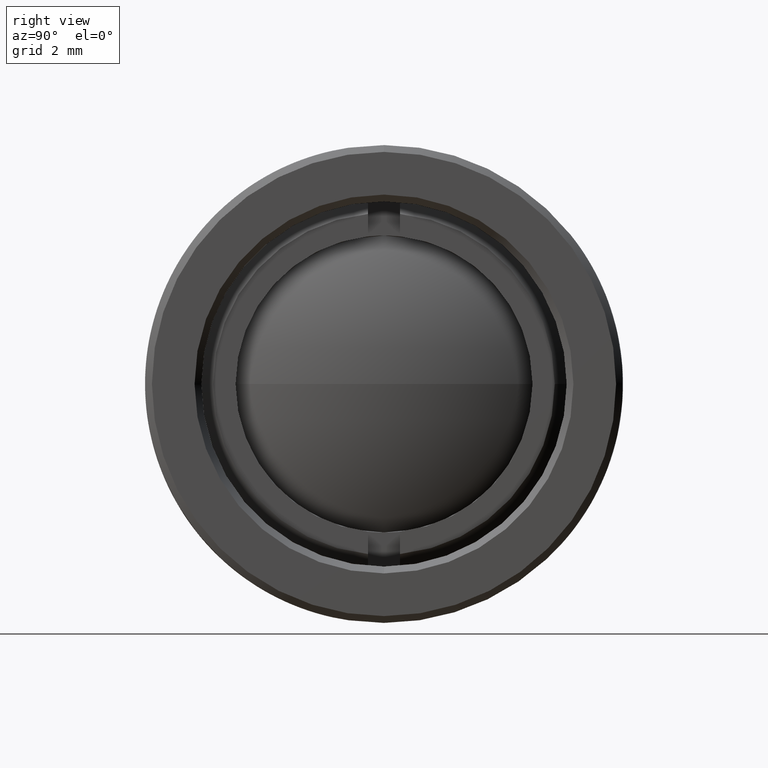
[diagram: clean part render]
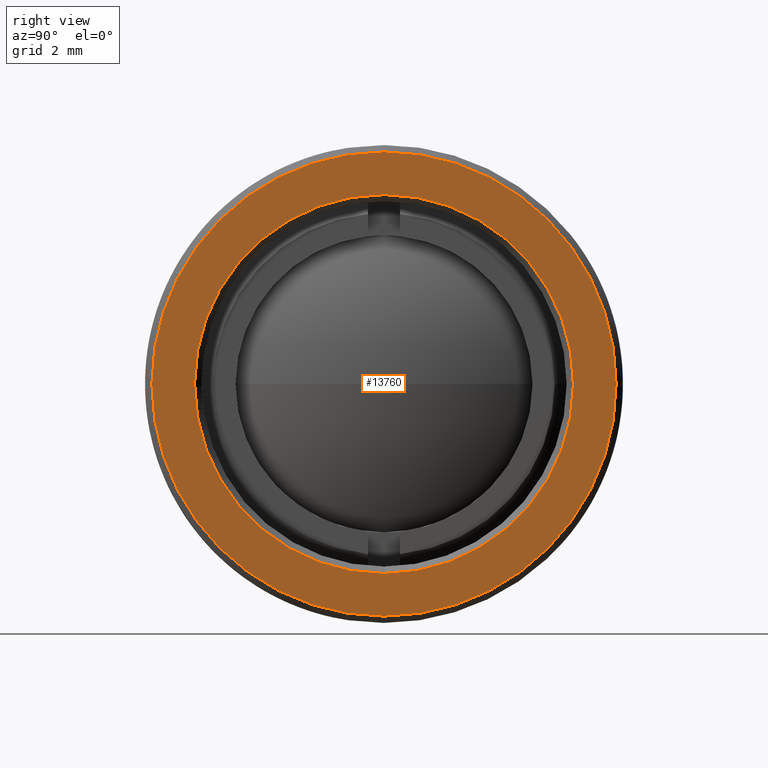
[diagram: same view with one face highlighted and labeled with its STEP entity id]
A machine part, right view. The second image highlights one B-rep face of the part: STEP entity #13760.
In plain terms, the highlighted planar face has unit normal (1, 0, -0).
Its self-contained STEP definition (entity closure, byte-faithful):
#206 = CARTESIAN_POINT ( 'NONE',  ( 0.2050000000000000400, 0.0000000000000000000, -0.2775000000000001900 ) ) ;
#255 = CIRCLE ( 'NONE', #7648, 0.2775000000000001900 ) ;
#630 = DIRECTION ( 'NONE',  ( 1.000000000000000000, -0.0000000000000000000, -0.0000000000000000000 ) ) ;
#768 = ORIENTED_EDGE ( 'NONE', *, *, #9866, .T. ) ;
#1076 = ORIENTED_EDGE ( 'NONE', *, *, #11582, .T. ) ;
#1813 = FACE_OUTER_BOUND ( 'NONE', #5691, .T. ) ;
#2953 = DIRECTION ( 'NONE',  ( -1.000000000000000000, 0.0000000000000000000, 0.0000000000000000000 ) ) ;
#2959 = EDGE_CURVE ( 'NONE', #4087, #7489, #14274, .T. ) ;
#3075 = CARTESIAN_POINT ( 'NONE',  ( 0.2050000000000000400, 4.225031457058368500E-017, -0.3400000000000000800 ) ) ;
#4087 = VERTEX_POINT ( 'NONE', #3075 ) ;
#4389 = DIRECTION ( 'NONE',  ( 1.000000000000000000, 0.0000000000000000000, -0.0000000000000000000 ) ) ;
#5059 = VERTEX_POINT ( 'NONE', #14886 ) ;
#5249 = CARTESIAN_POINT ( 'NONE',  ( 0.2050000000000000400, 0.0000000000000000000, 0.0000000000000000000 ) ) ;
#5687 = CARTESIAN_POINT ( 'NONE',  ( 0.2050000000000000400, 0.3499999999999999800, 0.0000000000000000000 ) ) ;
#5691 = EDGE_LOOP ( 'NONE', ( #1076, #7226 ) ) ;
#6297 = AXIS2_PLACEMENT_3D ( 'NONE', #5249, #15011, #6665 ) ;
#6665 = DIRECTION ( 'NONE',  ( 0.0000000000000000000, 0.0000000000000000000, -1.000000000000000000 ) ) ;
#7226 = ORIENTED_EDGE ( 'NONE', *, *, #2959, .T. ) ;
#7489 = VERTEX_POINT ( 'NONE', #8433 ) ;
#7552 = VERTEX_POINT ( 'NONE', #206 ) ;
#7648 = AXIS2_PLACEMENT_3D ( 'NONE', #7757, #17513, #9144 ) ;
#7757 = CARTESIAN_POINT ( 'NONE',  ( 0.2050000000000000400, 0.0000000000000000000, 0.0000000000000000000 ) ) ;
#7847 = ORIENTED_EDGE ( 'NONE', *, *, #12810, .T. ) ;
#8433 = CARTESIAN_POINT ( 'NONE',  ( 0.2050000000000000400, 0.0000000000000000000, 0.3400000000000000800 ) ) ;
#8821 = AXIS2_PLACEMENT_3D ( 'NONE', #5687, #4389, #14169 ) ;
#9014 = CARTESIAN_POINT ( 'NONE',  ( 0.2050000000000000400, 0.0000000000000000000, 0.0000000000000000000 ) ) ;
#9025 = EDGE_LOOP ( 'NONE', ( #7847, #768 ) ) ;
#9038 = CIRCLE ( 'NONE', #16171, 0.3400000000000000800 ) ;
#9144 = DIRECTION ( 'NONE',  ( 0.0000000000000000000, 0.0000000000000000000, -1.000000000000000000 ) ) ;
#9166 = FACE_BOUND ( 'NONE', #9025, .T. ) ;
#9480 = CIRCLE ( 'NONE', #9742, 0.2775000000000001900 ) ;
#9742 = AXIS2_PLACEMENT_3D ( 'NONE', #11316, #2953, #12723 ) ;
#9866 = EDGE_CURVE ( 'NONE', #5059, #7552, #9480, .T. ) ;
#9957 = PLANE ( 'NONE',  #8821 ) ;
#10421 = DIRECTION ( 'NONE',  ( 0.0000000000000000000, 0.0000000000000000000, -1.000000000000000000 ) ) ;
#11316 = CARTESIAN_POINT ( 'NONE',  ( 0.2050000000000000400, 0.0000000000000000000, 0.0000000000000000000 ) ) ;
#11582 = EDGE_CURVE ( 'NONE', #7489, #4087, #9038, .T. ) ;
#12723 = DIRECTION ( 'NONE',  ( 0.0000000000000000000, 0.0000000000000000000, -1.000000000000000000 ) ) ;
#12810 = EDGE_CURVE ( 'NONE', #7552, #5059, #255, .T. ) ;
#13760 = ADVANCED_FACE ( 'NONE', ( #1813, #9166 ), #9957, .T. ) ;
#14169 = DIRECTION ( 'NONE',  ( -0.0000000000000000000, 0.0000000000000000000, -1.000000000000000000 ) ) ;
#14274 = CIRCLE ( 'NONE', #6297, 0.3400000000000000800 ) ;
#14886 = CARTESIAN_POINT ( 'NONE',  ( 0.2050000000000000400, 3.398394867633907500E-017, 0.2775000000000001900 ) ) ;
#15011 = DIRECTION ( 'NONE',  ( 1.000000000000000000, -0.0000000000000000000, -0.0000000000000000000 ) ) ;
#16171 = AXIS2_PLACEMENT_3D ( 'NONE', #9014, #630, #10421 ) ;
#17513 = DIRECTION ( 'NONE',  ( -1.000000000000000000, 0.0000000000000000000, 0.0000000000000000000 ) ) ;